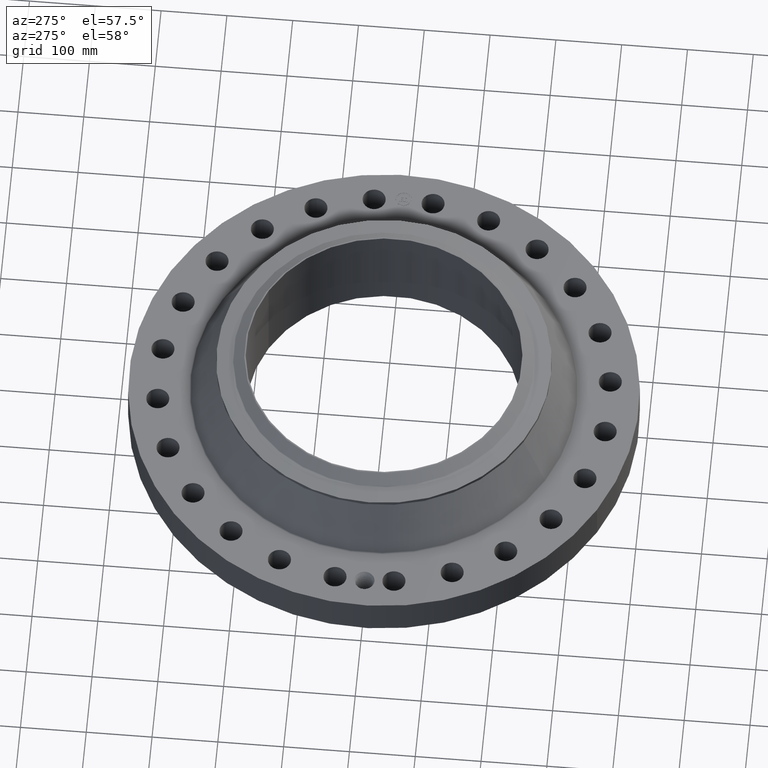
[diagram: clean part render]
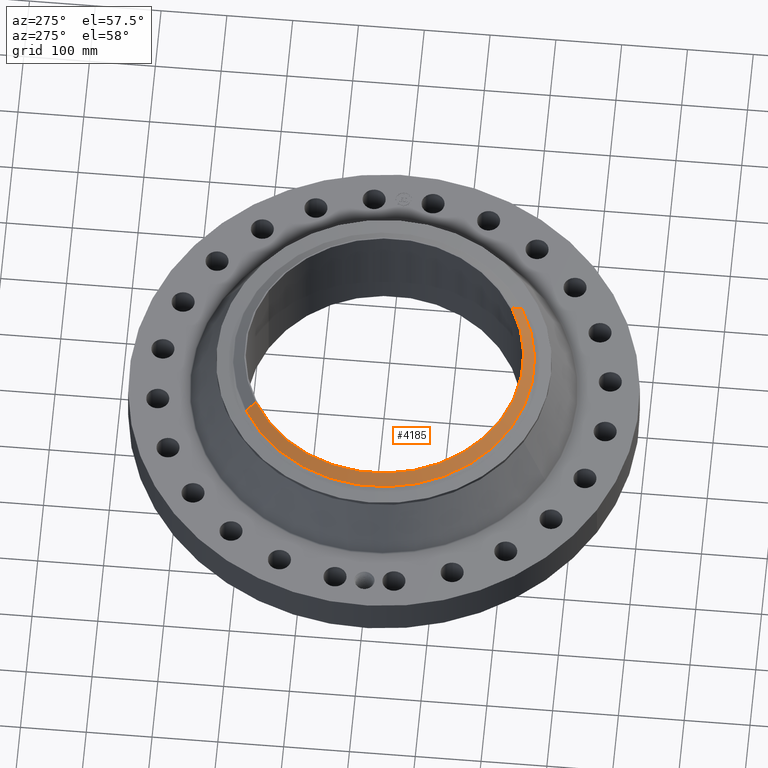
[diagram: same view with one face highlighted and labeled with its STEP entity id]
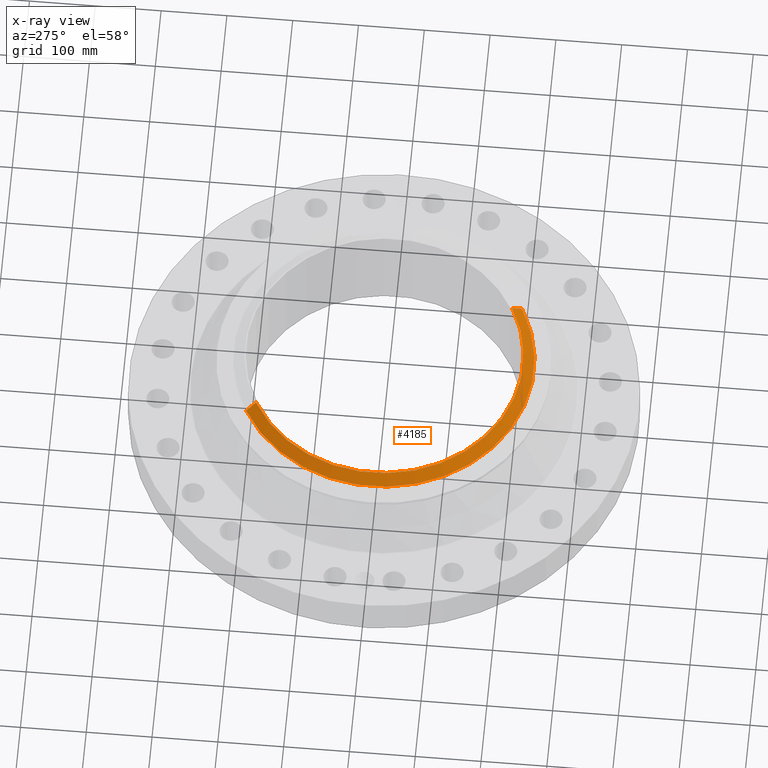
[diagram: x-ray of the same camera — body ghosted, the highlighted face saturated]
A machine part, auxiliary view. The second image highlights one B-rep face of the part: STEP entity #4185.
The next image is the same camera in x-ray: the body ghosted, the highlighted face saturated — about 0% of this face is hidden behind the body in this view.
In plain terms, the highlighted conical surface has half-angle 52.5 deg.
Its self-contained STEP definition (entity closure, byte-faithful):
#3359=AXIS2_PLACEMENT_3D('Circle Axis2P3D',#3357,#3358,$) ;
#4158=AXIS2_PLACEMENT_3D('Cone Axis2P3D',#4155,#4156,#4157) ;
#4169=AXIS2_PLACEMENT_3D('Circle Axis2P3D',#4167,#4168,$) ;
#3352=CARTESIAN_POINT('Vertex',(3.99301073591,-7.30915712475,6.44000000003)) ;
#3354=CARTESIAN_POINT('Vertex',(-3.99301073591,7.30915712475,6.44000000003)) ;
#3357=CARTESIAN_POINT('Axis2P3D Location',(0.,0.,6.44000000003)) ;
#4155=CARTESIAN_POINT('Axis2P3D Location',(0.,0.,6.44000000003)) ;
#4160=CARTESIAN_POINT('Line Origine',(-4.14795203846,7.59277527665,6.19201437259)) ;
#4164=CARTESIAN_POINT('Vertex',(-4.30289334101,7.87639342856,5.94402874516)) ;
#4167=CARTESIAN_POINT('Axis2P3D Location',(0.,0.,5.94402874516)) ;
#4171=CARTESIAN_POINT('Vertex',(4.30289334101,-7.87639342856,5.94402874516)) ;
#4174=CARTESIAN_POINT('Line Origine',(4.14795203846,-7.59277527665,6.19201437259)) ;
#3358=DIRECTION('Axis2P3D Direction',(0.,0.,-0.0393700787402)) ;
#4156=DIRECTION('Axis2P3D Direction',(-0.,-0.,-0.0393700787402)) ;
#4157=DIRECTION('Axis2P3D XDirection',(-0.0188750212049,0.0345504945626,0.)) ;
#4161=DIRECTION('Vector Direction',(-0.014974561121,0.02741075027,-0.023966985394)) ;
#4168=DIRECTION('Axis2P3D Direction',(0.,0.,-0.0393700787402)) ;
#4175=DIRECTION('Vector Direction',(0.014974561121,-0.02741075027,-0.023966985394)) ;
#4162=VECTOR('Line Direction',#4161,0.0393700787402) ;
#4176=VECTOR('Line Direction',#4175,0.0393700787402) ;
#4180=ORIENTED_EDGE('',*,*,#3361,.F.) ;
#4181=ORIENTED_EDGE('',*,*,#4166,.T.) ;
#4182=ORIENTED_EDGE('',*,*,#4173,.T.) ;
#4183=ORIENTED_EDGE('',*,*,#4178,.F.) ;
#4185=ADVANCED_FACE('PartBody',(#4184),#4159,.T.) ;
#3360=CIRCLE('generated circle',#3359,8.32874015751) ;
#4170=CIRCLE('generated circle',#4169,8.97510248106) ;
#4159=CONICAL_SURFACE('Cone',#4158,8.32874015751,0.916297857297) ;
#3361=EDGE_CURVE('',#3355,#3353,#3360,.F.) ;
#4166=EDGE_CURVE('',#3355,#4165,#4163,.T.) ;
#4173=EDGE_CURVE('',#4165,#4172,#4170,.F.) ;
#4178=EDGE_CURVE('',#3353,#4172,#4177,.T.) ;
#4179=EDGE_LOOP('',(#4180,#4181,#4182,#4183)) ;
#4184=FACE_OUTER_BOUND('',#4179,.T.) ;
#4163=LINE('Line',#4160,#4162) ;
#4177=LINE('Line',#4174,#4176) ;
#3353=VERTEX_POINT('',#3352) ;
#3355=VERTEX_POINT('',#3354) ;
#4165=VERTEX_POINT('',#4164) ;
#4172=VERTEX_POINT('',#4171) ;